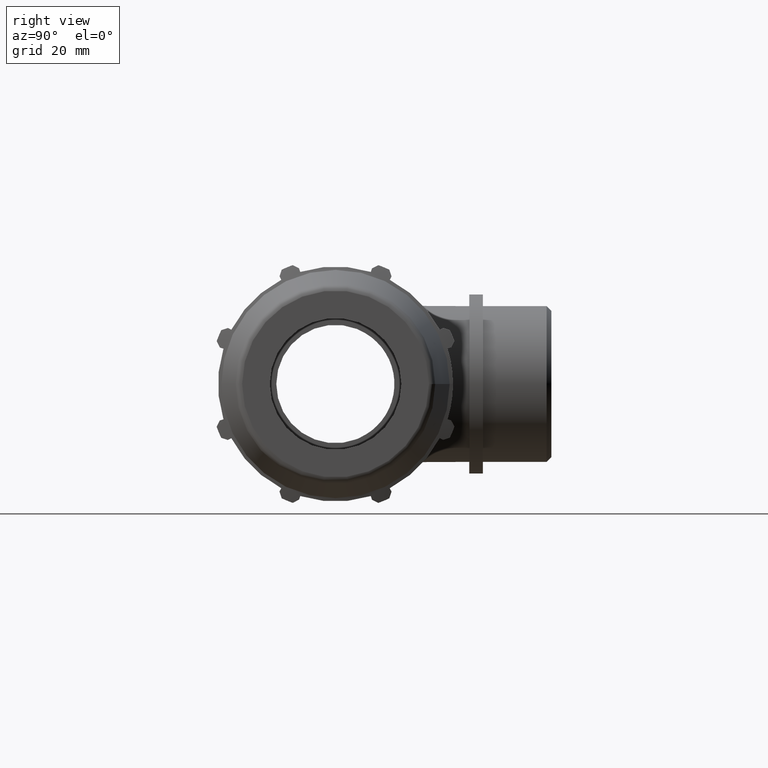
[diagram: clean part render]
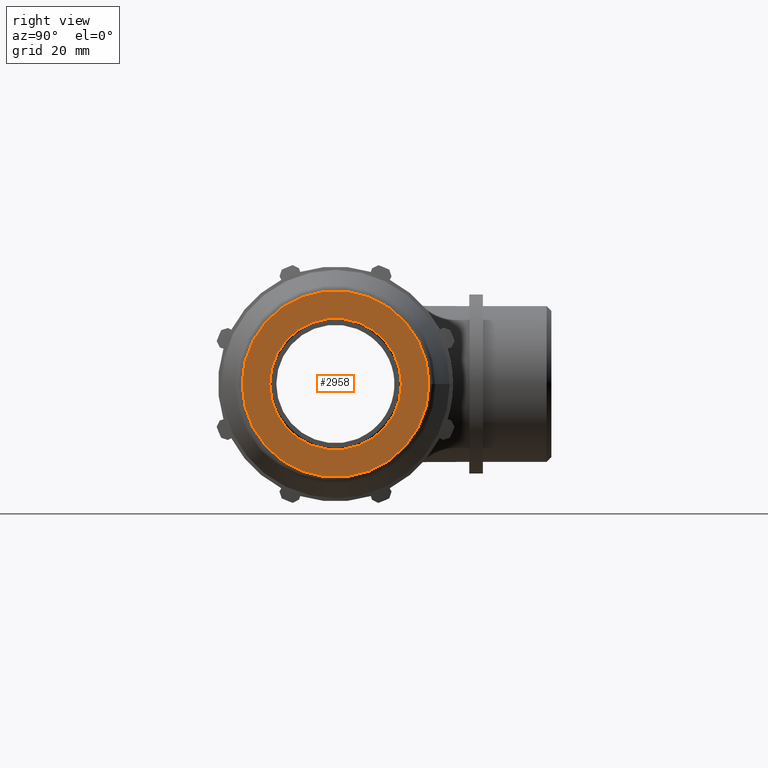
[diagram: same view with one face highlighted and labeled with its STEP entity id]
A machine part, right view. The second image highlights one B-rep face of the part: STEP entity #2958.
In plain terms, the highlighted planar face has unit normal (1, 0, 0).
Its self-contained STEP definition (entity closure, byte-faithful):
#95=PLANE('',#3233);
#277=CIRCLE('',#3231,35.4755399170125);
#278=CIRCLE('',#3234,24.9999999999999);
#743=FACE_BOUND('',#1093,.T.);
#901=FACE_OUTER_BOUND('',#1092,.T.);
#1092=EDGE_LOOP('',(#2539));
#1093=EDGE_LOOP('',(#2540));
#1394=VERTEX_POINT('',#5064);
#1395=VERTEX_POINT('',#5068);
#1784=EDGE_CURVE('',#1394,#1394,#277,.T.);
#1785=EDGE_CURVE('',#1395,#1395,#278,.T.);
#2539=ORIENTED_EDGE('',*,*,#1784,.F.);
#2540=ORIENTED_EDGE('',*,*,#1785,.F.);
#2958=ADVANCED_FACE('',(#901,#743),#95,.T.);
#3231=AXIS2_PLACEMENT_3D('',#5065,#3961,#3962);
#3233=AXIS2_PLACEMENT_3D('',#5067,#3965,#3966);
#3234=AXIS2_PLACEMENT_3D('',#5069,#3967,#3968);
#3961=DIRECTION('center_axis',(-1.,-5.59195078520197E-16,0.));
#3962=DIRECTION('ref_axis',(5.59195078520197E-16,-1.,1.83697019872103E-16));
#3965=DIRECTION('center_axis',(1.,5.59195078520197E-16,0.));
#3966=DIRECTION('ref_axis',(0.,0.,-1.));
#3967=DIRECTION('center_axis',(1.,5.59195078520197E-16,0.));
#3968=DIRECTION('ref_axis',(0.,0.,-1.));
#5064=CARTESIAN_POINT('',(115.,35.4755399170125,-1.08612516018484E-14));
#5065=CARTESIAN_POINT('Origin',(115.,6.43074340298226E-14,0.));
#5067=CARTESIAN_POINT('Origin',(115.,25.,0.));
#5068=CARTESIAN_POINT('',(115.,25.,0.));
#5069=CARTESIAN_POINT('Origin',(115.,6.43074340298226E-14,0.));